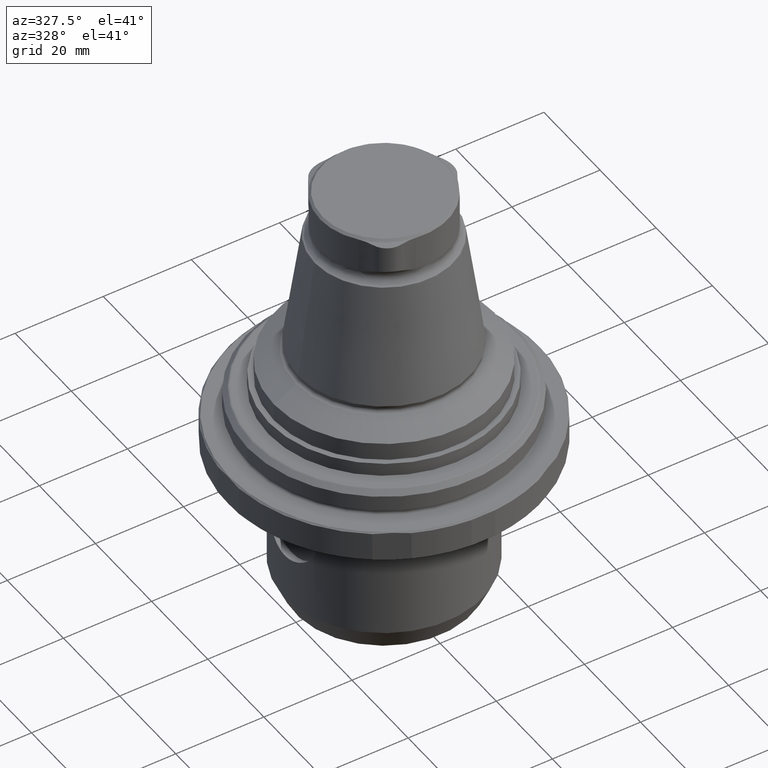
[diagram: clean part render]
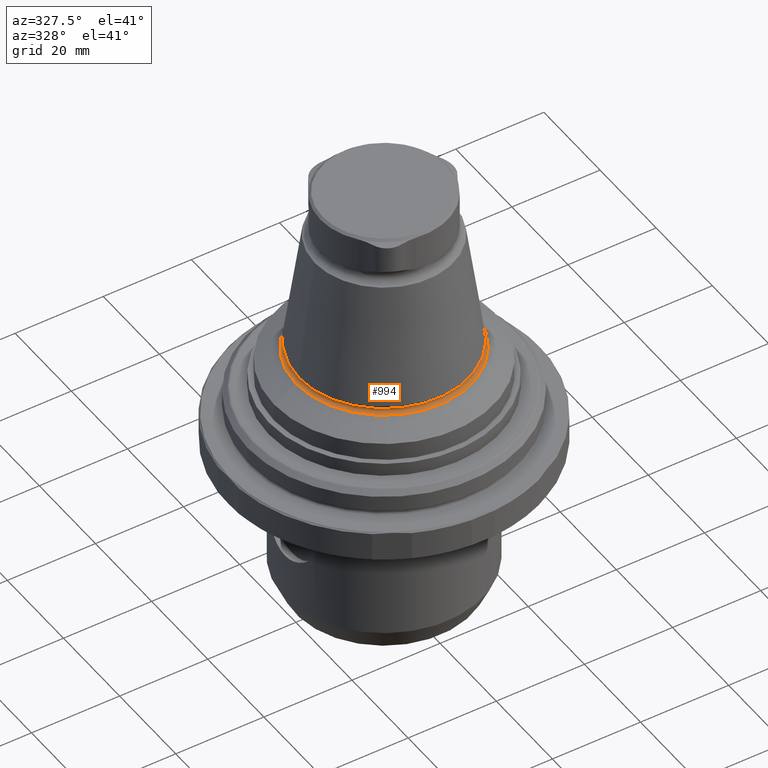
[diagram: same view with one face highlighted and labeled with its STEP entity id]
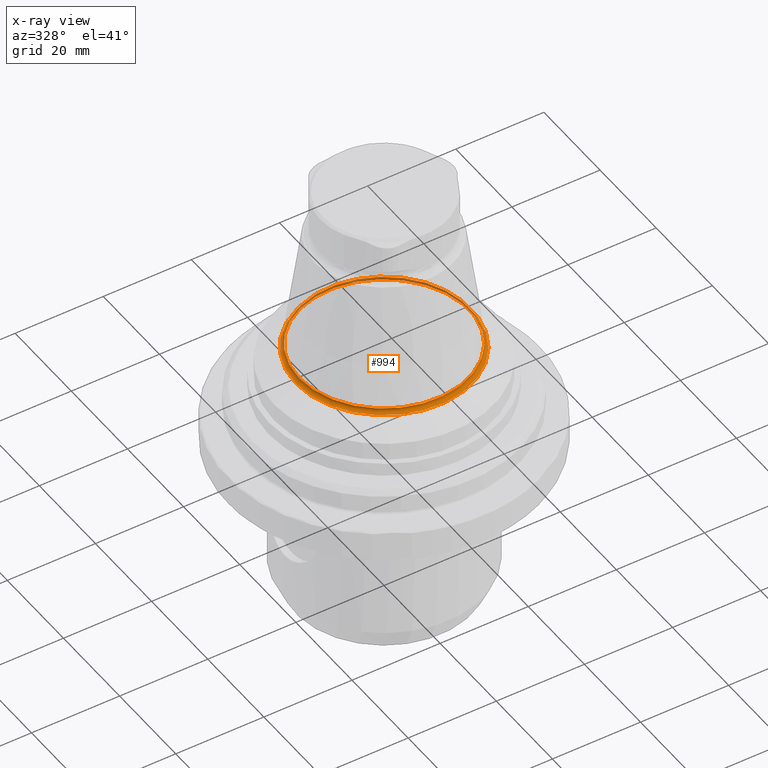
[diagram: x-ray of the same camera — body ghosted, the highlighted face saturated]
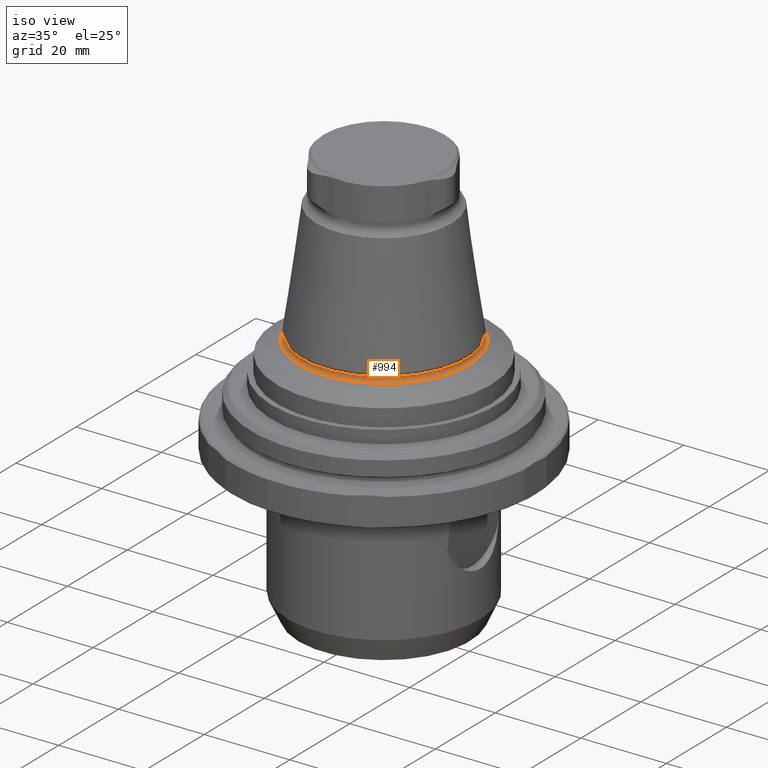
[diagram: same view with one face highlighted and labeled with its STEP entity id]
A machine part, auxiliary view. The second image highlights one B-rep face of the part: STEP entity #994.
The next image is the same camera in x-ray: the body ghosted, the highlighted face saturated — about 21% of this face is hidden behind the body in this view.
A second angle (iso view) of the same face is appended — the face is thin or edge-on in the first view.
In plain terms, the highlighted toroidal blend (fillet) surface has major radius 20 mm and minor (blend) radius 0.8 mm.
Its self-contained STEP definition (entity closure, byte-faithful):
#24=TOROIDAL_SURFACE('',#1127,20.,0.8);
#109=CIRCLE('',#1126,19.2482459033713);
#110=CIRCLE('',#1128,19.9770526580503);
#402=ORIENTED_EDGE('',*,*,#552,.T.);
#403=ORIENTED_EDGE('',*,*,#553,.F.);
#552=EDGE_CURVE('',#651,#651,#109,.T.);
#553=EDGE_CURVE('',#652,#652,#110,.T.);
#651=VERTEX_POINT('',#1872);
#652=VERTEX_POINT('',#1875);
#796=EDGE_LOOP('',(#402));
#797=EDGE_LOOP('',(#403));
#892=FACE_BOUND('',#796,.T.);
#893=FACE_BOUND('',#797,.T.);
#994=ADVANCED_FACE('',(#892,#893),#24,.F.);
#1126=AXIS2_PLACEMENT_3D('',#1871,#1393,#1394);
#1127=AXIS2_PLACEMENT_3D('',#1873,#1395,#1396);
#1128=AXIS2_PLACEMENT_3D('',#1874,#1397,#1398);
#1393=DIRECTION('',(-4.38328612912168E-16,-8.51929322185263E-24,-1.));
#1394=DIRECTION('',(-1.,9.77164313006873E-16,4.38328610599545E-16));
#1395=DIRECTION('',(-4.38328612912168E-16,-8.51929322185263E-24,-1.));
#1396=DIRECTION('',(-1.,9.77164313006873E-16,4.38328610599545E-16));
#1397=DIRECTION('',(-4.38328612912168E-16,-8.51929322185263E-24,-1.));
#1398=DIRECTION('',(-1.,9.77164313006873E-16,4.38328610599545E-16));
#1871=CARTESIAN_POINT('',(-8.05431646594814E-14,-9.81645350279988E-14,16.4721762342285));
#1872=CARTESIAN_POINT('',(-19.2482459033714,-7.93558360432436E-14,16.4721762342285));
#1873=CARTESIAN_POINT('',(-8.14268490836323E-14,-9.81645350303298E-14,16.198560119568));
#1874=CARTESIAN_POINT('',(-8.10136170325717E-14,-9.81645350371424E-14,15.398889300107));
#1875=CARTESIAN_POINT('',(-19.9770526580504,-7.86436721006366E-14,15.398889300107));